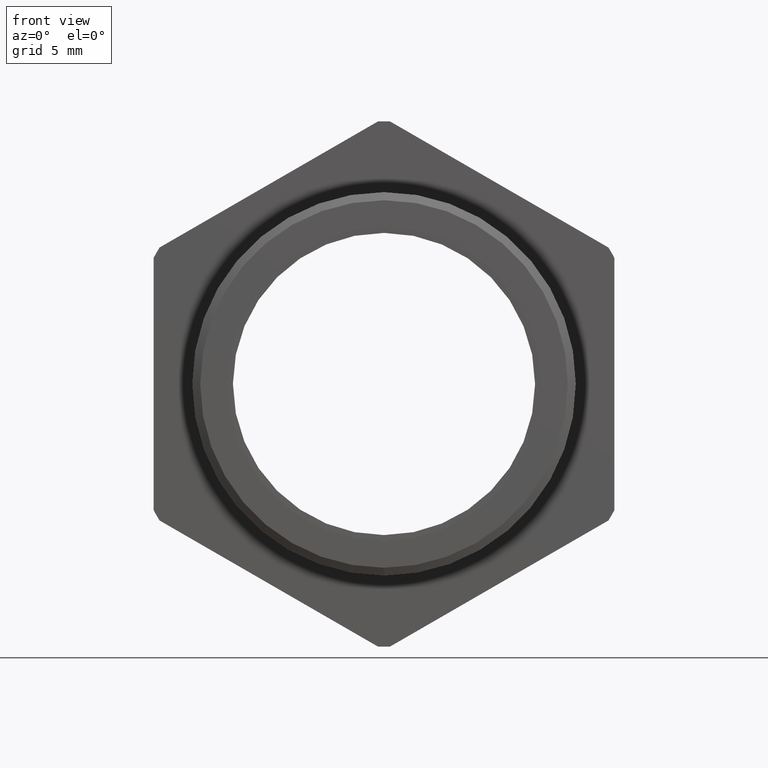
[diagram: clean part render]
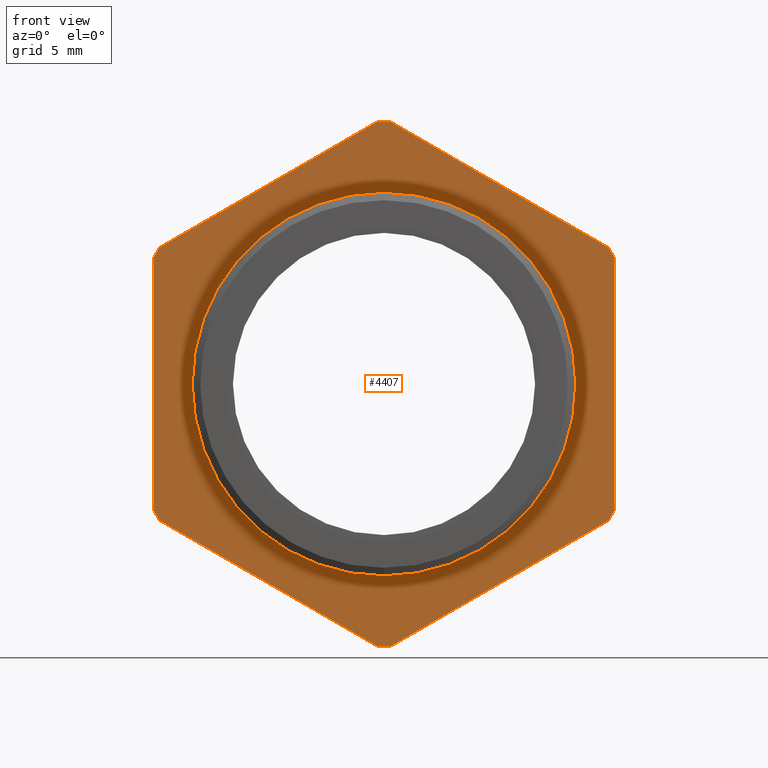
[diagram: same view with one face highlighted and labeled with its STEP entity id]
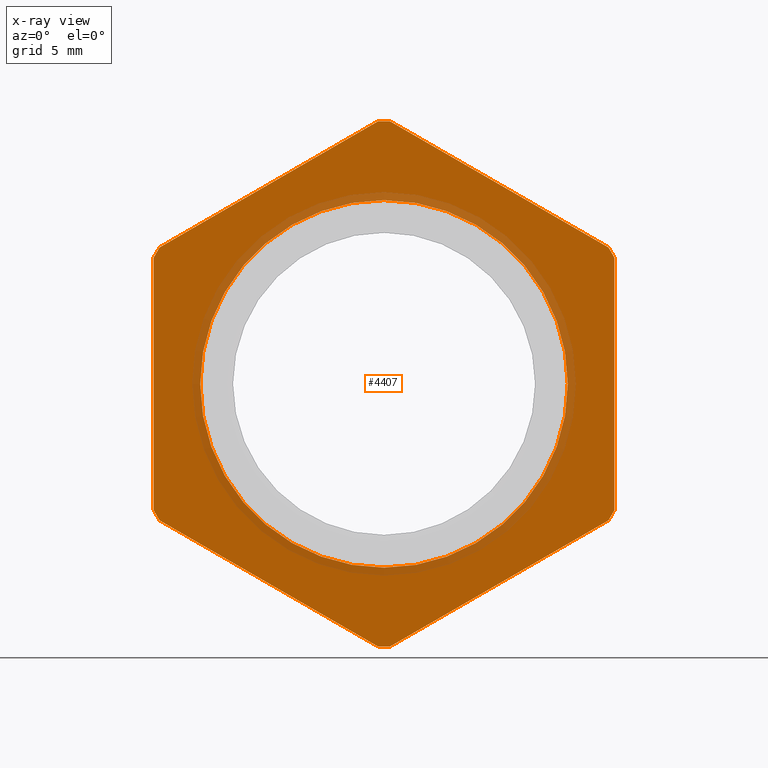
[diagram: x-ray of the same camera — body ghosted, the highlighted face saturated]
A machine part, front view. The second image highlights one B-rep face of the part: STEP entity #4407.
The next image is the same camera in x-ray: the body ghosted, the highlighted face saturated — about 12% of this face is hidden behind the body in this view.
In plain terms, the highlighted planar face has unit normal (0, -1, -0).
Its self-contained STEP definition (entity closure, byte-faithful):
#241 = DIRECTION ( 'NONE',  ( 0.0000000000000000000, 0.0000000000000000000, -1.000000000000000000 ) ) ;
#242 = DIRECTION ( 'NONE',  ( -0.0000000000000000000, -1.000000000000000000, -0.0000000000000000000 ) ) ;
#243 = CARTESIAN_POINT ( 'NONE',  ( 0.0000000000000000000, 0.2775548905829479700, 0.0000000000000000000 ) ) ;
#244 = AXIS2_PLACEMENT_3D ( 'NONE', #243, #242, #241 ) ;
#245 = CIRCLE ( 'NONE', #244, 0.4502999999999999800 ) ;
#254 = CARTESIAN_POINT ( 'NONE',  ( 0.01026000026703743400, 0.2775548905829479700, 0.4501830987437449600 ) ) ;
#464 = VERTEX_POINT ( 'NONE', #254 ) ;
#466 = EDGE_CURVE ( 'NONE', #759, #477, #245, .T. ) ;
#475 = VERTEX_POINT ( 'NONE', #3436 ) ;
#477 = VERTEX_POINT ( 'NONE', #3435 ) ;
#480 = EDGE_CURVE ( 'NONE', #487, #464, #3428, .T. ) ;
#487 = VERTEX_POINT ( 'NONE', #3467 ) ;
#553 = EDGE_CURVE ( 'NONE', #3397, #3371, #3457, .T. ) ;
#596 = VERTEX_POINT ( 'NONE', #3450 ) ;
#759 = VERTEX_POINT ( 'NONE', #3492 ) ;
#761 = VERTEX_POINT ( 'NONE', #3491 ) ;
#764 = VERTEX_POINT ( 'NONE', #3490 ) ;
#767 = EDGE_CURVE ( 'NONE', #596, #764, #3489, .T. ) ;
#768 = EDGE_CURVE ( 'NONE', #475, #761, #3484, .T. ) ;
#783 = EDGE_CURVE ( 'NONE', #1075, #487, #3563, .T. ) ;
#932 = EDGE_CURVE ( 'NONE', #464, #1126, #3601, .T. ) ;
#1075 = VERTEX_POINT ( 'NONE', #3591 ) ;
#1126 = VERTEX_POINT ( 'NONE', #3581 ) ;
#1462 = CARTESIAN_POINT ( 'NONE',  ( 3.857637417314162700E-017, 0.2775548905829479700, 0.3150000000000000000 ) ) ;
#1463 = CARTESIAN_POINT ( 'NONE',  ( 0.0000000000000000000, 0.2775548905829479700, -0.3150000000000000000 ) ) ;
#1464 = DIRECTION ( 'NONE',  ( 0.0000000000000000000, 0.0000000000000000000, -1.000000000000000000 ) ) ;
#1465 = DIRECTION ( 'NONE',  ( -0.0000000000000000000, -1.000000000000000000, -0.0000000000000000000 ) ) ;
#1466 = CARTESIAN_POINT ( 'NONE',  ( 0.0000000000000000000, 0.2775548905829479700, 0.0000000000000000000 ) ) ;
#1467 = AXIS2_PLACEMENT_3D ( 'NONE', #1466, #1465, #1464 ) ;
#1468 = CIRCLE ( 'NONE', #1467, 0.3150000000000000000 ) ;
#2003 = DIRECTION ( 'NONE',  ( -2.994746533912406200E-016, 0.0000000000000000000, 1.000000000000000000 ) ) ;
#2004 = VECTOR ( 'NONE', #2003, 39.37007874015748100 ) ;
#2005 = CARTESIAN_POINT ( 'NONE',  ( 0.3949999999999999600, 0.2775548905829479700, 2.395797227129924000E-017 ) ) ;
#2006 = LINE ( 'NONE', #2005, #2004 ) ;
#2213 = DIRECTION ( 'NONE',  ( -0.8660254037844386000, 0.0000000000000000000, -0.4999999999999998300 ) ) ;
#2214 = VECTOR ( 'NONE', #2213, 39.37007874015748900 ) ;
#2215 = CARTESIAN_POINT ( 'NONE',  ( 0.03875000000000002700, 0.2775548905829479700, 0.4784790355909024400 ) ) ;
#2216 = LINE ( 'NONE', #2215, #2214 ) ;
#3371 = VERTEX_POINT ( 'NONE', #3691 ) ;
#3397 = VERTEX_POINT ( 'NONE', #3708 ) ;
#3399 = EDGE_CURVE ( 'NONE', #3400, #3397, #3707, .T. ) ;
#3400 = VERTEX_POINT ( 'NONE', #3702 ) ;
#3425 = DIRECTION ( 'NONE',  ( -0.8660254037844386000, 0.0000000000000000000, 0.5000000000000002200 ) ) ;
#3426 = VECTOR ( 'NONE', #3425, 39.37007874015747400 ) ;
#3427 = CARTESIAN_POINT ( 'NONE',  ( 0.4337500000000000200, 0.2775548905829479700, 0.2056810333988042200 ) ) ;
#3428 = LINE ( 'NONE', #3427, #3426 ) ;
#3435 = CARTESIAN_POINT ( 'NONE',  ( 0.3950000000000000200, 0.2775548905829479700, -0.2162061284977832000 ) ) ;
#3436 = CARTESIAN_POINT ( 'NONE',  ( -0.3949999999999999600, 0.2775548905829479700, -0.2162061284977833100 ) ) ;
#3450 = CARTESIAN_POINT ( 'NONE',  ( -0.3847399997329628000, 0.2775548905829479700, 0.2339769702459618100 ) ) ;
#3453 = DIRECTION ( 'NONE',  ( 0.0000000000000000000, 0.0000000000000000000, -1.000000000000000000 ) ) ;
#3454 = DIRECTION ( 'NONE',  ( -0.0000000000000000000, -1.000000000000000000, -0.0000000000000000000 ) ) ;
#3455 = CARTESIAN_POINT ( 'NONE',  ( 0.0000000000000000000, 0.2775548905829479700, 0.0000000000000000000 ) ) ;
#3456 = AXIS2_PLACEMENT_3D ( 'NONE', #3455, #3454, #3453 ) ;
#3457 = CIRCLE ( 'NONE', #3456, 0.4502999999999999800 ) ;
#3467 = CARTESIAN_POINT ( 'NONE',  ( 0.3847399997329628600, 0.2775548905829479700, 0.2339769702459617900 ) ) ;
#3480 = DIRECTION ( 'NONE',  ( 0.0000000000000000000, 0.0000000000000000000, -1.000000000000000000 ) ) ;
#3481 = DIRECTION ( 'NONE',  ( -0.0000000000000000000, -1.000000000000000000, -0.0000000000000000000 ) ) ;
#3482 = CARTESIAN_POINT ( 'NONE',  ( 0.0000000000000000000, 0.2775548905829479700, 0.0000000000000000000 ) ) ;
#3483 = AXIS2_PLACEMENT_3D ( 'NONE', #3482, #3481, #3480 ) ;
#3484 = CIRCLE ( 'NONE', #3483, 0.4502999999999999800 ) ;
#3485 = DIRECTION ( 'NONE',  ( 0.0000000000000000000, 0.0000000000000000000, -1.000000000000000000 ) ) ;
#3486 = DIRECTION ( 'NONE',  ( -0.0000000000000000000, -1.000000000000000000, -0.0000000000000000000 ) ) ;
#3487 = CARTESIAN_POINT ( 'NONE',  ( 0.0000000000000000000, 0.2775548905829479700, 0.0000000000000000000 ) ) ;
#3488 = AXIS2_PLACEMENT_3D ( 'NONE', #3487, #3486, #3485 ) ;
#3489 = CIRCLE ( 'NONE', #3488, 0.4502999999999999800 ) ;
#3490 = CARTESIAN_POINT ( 'NONE',  ( -0.3949999999999999600, 0.2775548905829479700, 0.2162061284977833100 ) ) ;
#3491 = CARTESIAN_POINT ( 'NONE',  ( -0.3847399997329630200, 0.2775548905829479700, -0.2339769702459614800 ) ) ;
#3492 = CARTESIAN_POINT ( 'NONE',  ( 0.3847399997329629100, 0.2775548905829479700, -0.2339769702459617300 ) ) ;
#3513 = CARTESIAN_POINT ( 'NONE',  ( 0.0000000000000000000, 0.2775548905829479700, 0.0000000000000000000 ) ) ;
#3538 = CARTESIAN_POINT ( 'NONE',  ( 0.0000000000000000000, 0.2775548905829479700, 0.0000000000000000000 ) ) ;
#3560 = DIRECTION ( 'NONE',  ( 0.0000000000000000000, 0.0000000000000000000, -1.000000000000000000 ) ) ;
#3561 = DIRECTION ( 'NONE',  ( -0.0000000000000000000, -1.000000000000000000, -0.0000000000000000000 ) ) ;
#3562 = AXIS2_PLACEMENT_3D ( 'NONE', #3513, #3561, #3560 ) ;
#3563 = CIRCLE ( 'NONE', #3562, 0.4502999999999999800 ) ;
#3581 = CARTESIAN_POINT ( 'NONE',  ( -0.01026000026703719400, 0.2775548905829479700, 0.4501830987437449000 ) ) ;
#3591 = CARTESIAN_POINT ( 'NONE',  ( 0.3949999999999999100, 0.2775548905829479700, 0.2162061284977834200 ) ) ;
#3598 = DIRECTION ( 'NONE',  ( 0.0000000000000000000, 0.0000000000000000000, -1.000000000000000000 ) ) ;
#3599 = DIRECTION ( 'NONE',  ( -0.0000000000000000000, -1.000000000000000000, -0.0000000000000000000 ) ) ;
#3600 = AXIS2_PLACEMENT_3D ( 'NONE', #3538, #3599, #3598 ) ;
#3601 = CIRCLE ( 'NONE', #3600, 0.4502999999999999800 ) ;
#3691 = CARTESIAN_POINT ( 'NONE',  ( 0.01026000026703700000, 0.2775548905829479700, -0.4501830987437449600 ) ) ;
#3702 = CARTESIAN_POINT ( 'NONE',  ( -0.01026000026703716000, 0.2775548905829479700, -0.4501830987437449600 ) ) ;
#3703 = DIRECTION ( 'NONE',  ( 0.0000000000000000000, 0.0000000000000000000, -1.000000000000000000 ) ) ;
#3704 = DIRECTION ( 'NONE',  ( -0.0000000000000000000, -1.000000000000000000, -0.0000000000000000000 ) ) ;
#3705 = CARTESIAN_POINT ( 'NONE',  ( 0.0000000000000000000, 0.2775548905829479700, 0.0000000000000000000 ) ) ;
#3706 = AXIS2_PLACEMENT_3D ( 'NONE', #3705, #3704, #3703 ) ;
#3707 = CIRCLE ( 'NONE', #3706, 0.4502999999999999800 ) ;
#3708 = CARTESIAN_POINT ( 'NONE',  ( 0.0000000000000000000, 0.2775548905829479700, -0.4502999999999999800 ) ) ;
#3772 = DIRECTION ( 'NONE',  ( 0.0000000000000000000, 0.0000000000000000000, -1.000000000000000000 ) ) ;
#3773 = DIRECTION ( 'NONE',  ( 0.0000000000000000000, -1.000000000000000000, -0.0000000000000000000 ) ) ;
#3774 = CARTESIAN_POINT ( 'NONE',  ( 0.3150000000000000000, 0.2775548905829479700, 0.0000000000000000000 ) ) ;
#3775 = AXIS2_PLACEMENT_3D ( 'NONE', #3774, #3773, #3772 ) ;
#3777 = PLANE ( 'NONE',  #3775 ) ;
#3780 = FACE_OUTER_BOUND ( 'NONE', #4403, .T. ) ;
#3781 = FACE_BOUND ( 'NONE', #4408, .T. ) ;
#3925 = DIRECTION ( 'NONE',  ( 0.0000000000000000000, 0.0000000000000000000, -1.000000000000000000 ) ) ;
#3926 = VECTOR ( 'NONE', #3925, 39.37007874015748100 ) ;
#3927 = CARTESIAN_POINT ( 'NONE',  ( -0.3949999999999999600, 0.2775548905829479700, 0.0000000000000000000 ) ) ;
#3928 = LINE ( 'NONE', #3927, #3926 ) ;
#3953 = DIRECTION ( 'NONE',  ( 0.0000000000000000000, 0.0000000000000000000, -1.000000000000000000 ) ) ;
#3954 = DIRECTION ( 'NONE',  ( -0.0000000000000000000, -1.000000000000000000, -0.0000000000000000000 ) ) ;
#3955 = CARTESIAN_POINT ( 'NONE',  ( 0.0000000000000000000, 0.2775548905829479700, 0.0000000000000000000 ) ) ;
#3956 = AXIS2_PLACEMENT_3D ( 'NONE', #3955, #3954, #3953 ) ;
#3961 = CIRCLE ( 'NONE', #3956, 0.3150000000000000000 ) ;
#4132 = DIRECTION ( 'NONE',  ( 0.8660254037844386000, 0.0000000000000000000, -0.5000000000000002200 ) ) ;
#4133 = VECTOR ( 'NONE', #4132, 39.37007874015747400 ) ;
#4134 = CARTESIAN_POINT ( 'NONE',  ( 0.03874999999999989600, 0.2775548905829479700, -0.4784790355909022700 ) ) ;
#4135 = LINE ( 'NONE', #4134, #4133 ) ;
#4212 = DIRECTION ( 'NONE',  ( 0.8660254037844386000, 0.0000000000000000000, 0.4999999999999998300 ) ) ;
#4213 = VECTOR ( 'NONE', #4212, 39.37007874015748900 ) ;
#4214 = CARTESIAN_POINT ( 'NONE',  ( 0.4337499999999999700, 0.2775548905829479700, -0.2056810333988042500 ) ) ;
#4215 = LINE ( 'NONE', #4214, #4213 ) ;
#4403 = EDGE_LOOP ( 'NONE', ( #4430, #4431, #4432, #4433, #4434, #4435, #4436, #4437, #4438, #4516, #4525, #4526, #4517 ) ) ;
#4405 = ORIENTED_EDGE ( 'NONE', *, *, #4519, .F. ) ;
#4406 = ORIENTED_EDGE ( 'NONE', *, *, #5889, .F. ) ;
#4407 = ADVANCED_FACE ( 'NONE', ( #3781, #3780 ), #3777, .T. ) ;
#4408 = EDGE_LOOP ( 'NONE', ( #4406, #4405 ) ) ;
#4430 = ORIENTED_EDGE ( 'NONE', *, *, #466, .T. ) ;
#4431 = ORIENTED_EDGE ( 'NONE', *, *, #6160, .T. ) ;
#4432 = ORIENTED_EDGE ( 'NONE', *, *, #783, .T. ) ;
#4433 = ORIENTED_EDGE ( 'NONE', *, *, #480, .T. ) ;
#4434 = ORIENTED_EDGE ( 'NONE', *, *, #932, .T. ) ;
#4435 = ORIENTED_EDGE ( 'NONE', *, *, #6266, .T. ) ;
#4436 = ORIENTED_EDGE ( 'NONE', *, *, #767, .T. ) ;
#4437 = ORIENTED_EDGE ( 'NONE', *, *, #4499, .T. ) ;
#4438 = ORIENTED_EDGE ( 'NONE', *, *, #768, .T. ) ;
#4499 = EDGE_CURVE ( 'NONE', #764, #475, #3928, .T. ) ;
#4516 = ORIENTED_EDGE ( 'NONE', *, *, #4659, .T. ) ;
#4517 = ORIENTED_EDGE ( 'NONE', *, *, #4675, .T. ) ;
#4519 = EDGE_CURVE ( 'NONE', #5891, #5890, #3961, .T. ) ;
#4525 = ORIENTED_EDGE ( 'NONE', *, *, #3399, .T. ) ;
#4526 = ORIENTED_EDGE ( 'NONE', *, *, #553, .T. ) ;
#4659 = EDGE_CURVE ( 'NONE', #761, #3400, #4135, .T. ) ;
#4675 = EDGE_CURVE ( 'NONE', #3371, #759, #4215, .T. ) ;
#5889 = EDGE_CURVE ( 'NONE', #5890, #5891, #1468, .T. ) ;
#5890 = VERTEX_POINT ( 'NONE', #1463 ) ;
#5891 = VERTEX_POINT ( 'NONE', #1462 ) ;
#6160 = EDGE_CURVE ( 'NONE', #477, #1075, #2006, .T. ) ;
#6266 = EDGE_CURVE ( 'NONE', #1126, #596, #2216, .T. ) ;